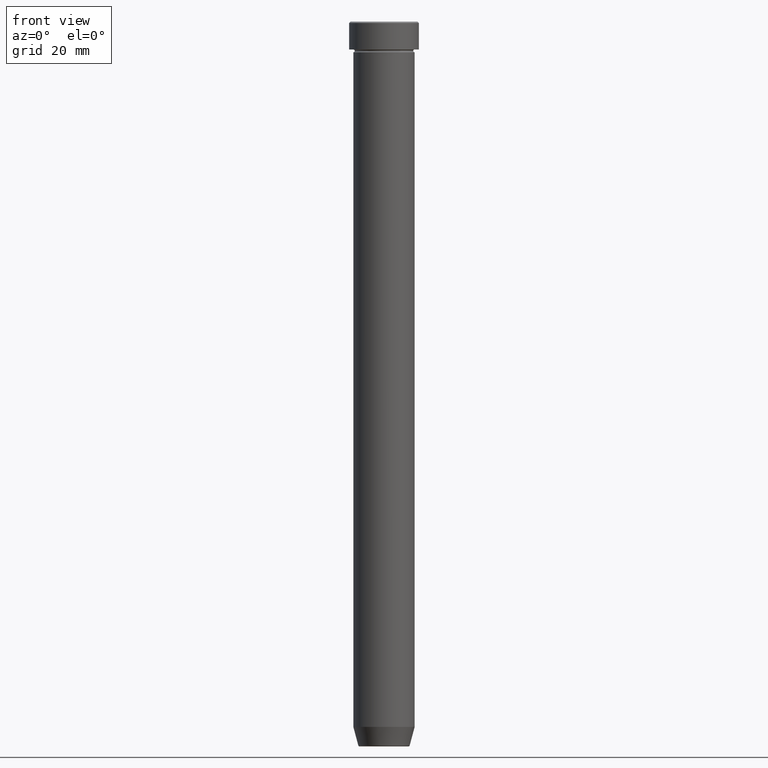
[diagram: clean part render]
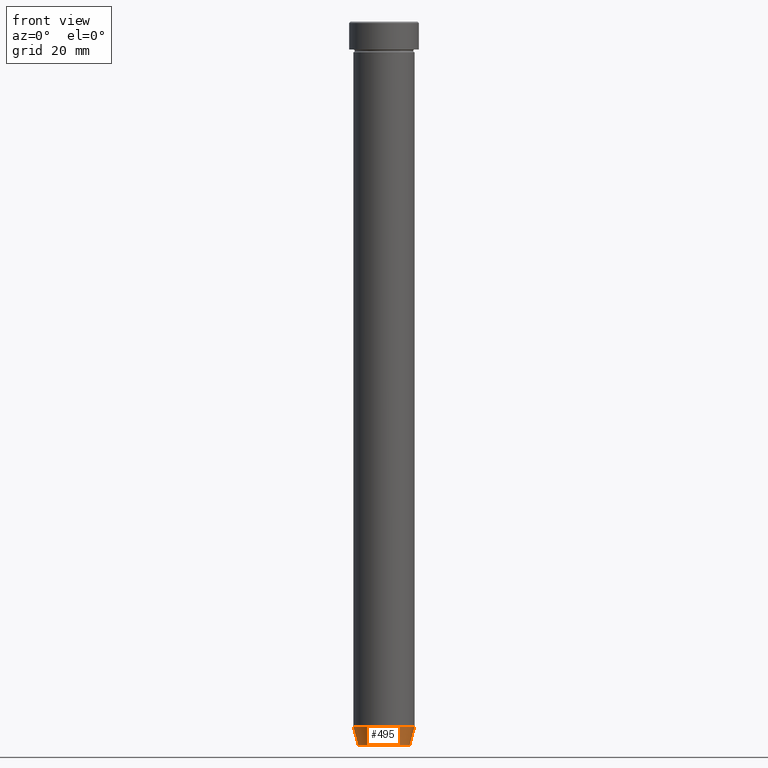
[diagram: same view with one face highlighted and labeled with its STEP entity id]
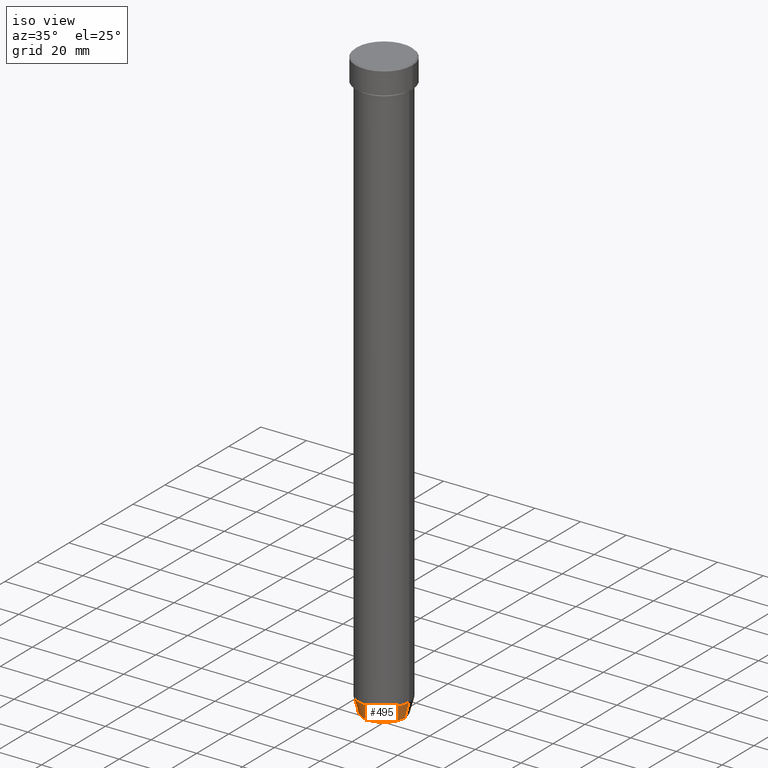
[diagram: same view with one face highlighted and labeled with its STEP entity id]
A machine part, front view. The second image highlights one B-rep face of the part: STEP entity #495.
A second angle (iso view) of the same face is appended — the face is thin or edge-on in the first view.
In plain terms, the highlighted conical surface has half-angle 15 deg.
Its self-contained STEP definition (entity closure, byte-faithful):
#14 = VECTOR ( 'NONE', #63, 1000.000000000000000 ) ;
#19 = DIRECTION ( 'NONE',  ( -1.000000000000000000, 0.000000000000000000, 0.000000000000000000 ) ) ;
#37 = EDGE_CURVE ( 'NONE', #414, #301, #84, .T. ) ;
#51 = DIRECTION ( 'NONE',  ( -0.000000000000000000, -0.000000000000000000, 1.000000000000000000 ) ) ;
#57 = CARTESIAN_POINT ( 'NONE',  ( -9.223655072137189492, 1.238341722557647202E-15, -259.6294095225512706 ) ) ;
#63 = DIRECTION ( 'NONE',  ( 0.2588190451025213501, 0.000000000000000000, 0.9659258262890680902 ) ) ;
#67 = CARTESIAN_POINT ( 'NONE',  ( -11.00000000000000000, 1.347111479062088405E-15, -253.0000000000000000 ) ) ;
#75 = CARTESIAN_POINT ( 'NONE',  ( 0.000000000000000000, 0.000000000000000000, -260.0000000000000000 ) ) ;
#84 = CIRCLE ( 'NONE', #408, 9.223655072137189492 ) ;
#98 = EDGE_CURVE ( 'NONE', #301, #346, #567, .T. ) ;
#117 = AXIS2_PLACEMENT_3D ( 'NONE', #75, #258, #435 ) ;
#146 = CARTESIAN_POINT ( 'NONE',  ( 9.223655072137189492, 0.000000000000000000, -259.6294095225512706 ) ) ;
#150 = CARTESIAN_POINT ( 'NONE',  ( 9.124355652982133691, 0.000000000000000000, -260.0000000000000000 ) ) ;
#151 = EDGE_LOOP ( 'NONE', ( #530, #303, #483, #306 ) ) ;
#247 = DIRECTION ( 'NONE',  ( -0.000000000000000000, -0.000000000000000000, 1.000000000000000000 ) ) ;
#255 = LINE ( 'NONE', #434, #357 ) ;
#258 = DIRECTION ( 'NONE',  ( -0.000000000000000000, -0.000000000000000000, 1.000000000000000000 ) ) ;
#279 = CARTESIAN_POINT ( 'NONE',  ( 11.00000000000000000, 0.000000000000000000, -253.0000000000000000 ) ) ;
#301 = VERTEX_POINT ( 'NONE', #146 ) ;
#303 = ORIENTED_EDGE ( 'NONE', *, *, #37, .T. ) ;
#306 = ORIENTED_EDGE ( 'NONE', *, *, #307, .F. ) ;
#307 = EDGE_CURVE ( 'NONE', #422, #346, #349, .T. ) ;
#346 = VERTEX_POINT ( 'NONE', #279 ) ;
#348 = AXIS2_PLACEMENT_3D ( 'NONE', #559, #51, #511 ) ;
#349 = CIRCLE ( 'NONE', #348, 11.00000000000000000 ) ;
#357 = VECTOR ( 'NONE', #392, 1000.000000000000000 ) ;
#383 = CARTESIAN_POINT ( 'NONE',  ( 0.000000000000000000, 0.000000000000000000, -259.6294095225512706 ) ) ;
#392 = DIRECTION ( 'NONE',  ( -0.2588190451025213501, 3.169619151431772337E-17, 0.9659258262890680902 ) ) ;
#404 = EDGE_CURVE ( 'NONE', #414, #422, #255, .T. ) ;
#408 = AXIS2_PLACEMENT_3D ( 'NONE', #383, #247, #19 ) ;
#414 = VERTEX_POINT ( 'NONE', #57 ) ;
#422 = VERTEX_POINT ( 'NONE', #67 ) ;
#434 = CARTESIAN_POINT ( 'NONE',  ( -9.124355652982133691, 1.117411294470662806E-15, -260.0000000000000000 ) ) ;
#435 = DIRECTION ( 'NONE',  ( 1.000000000000000000, 0.000000000000000000, 0.000000000000000000 ) ) ;
#483 = ORIENTED_EDGE ( 'NONE', *, *, #98, .T. ) ;
#485 = FACE_OUTER_BOUND ( 'NONE', #151, .T. ) ;
#495 = ADVANCED_FACE ( 'NONE', ( #485 ), #500, .T. ) ;
#500 = CONICAL_SURFACE ( 'NONE', #117, 9.124355652982133691, 0.2617993877991500740 ) ;
#511 = DIRECTION ( 'NONE',  ( 1.000000000000000000, 0.000000000000000000, 0.000000000000000000 ) ) ;
#530 = ORIENTED_EDGE ( 'NONE', *, *, #404, .F. ) ;
#559 = CARTESIAN_POINT ( 'NONE',  ( 0.000000000000000000, 0.000000000000000000, -253.0000000000000000 ) ) ;
#567 = LINE ( 'NONE', #150, #14 ) ;